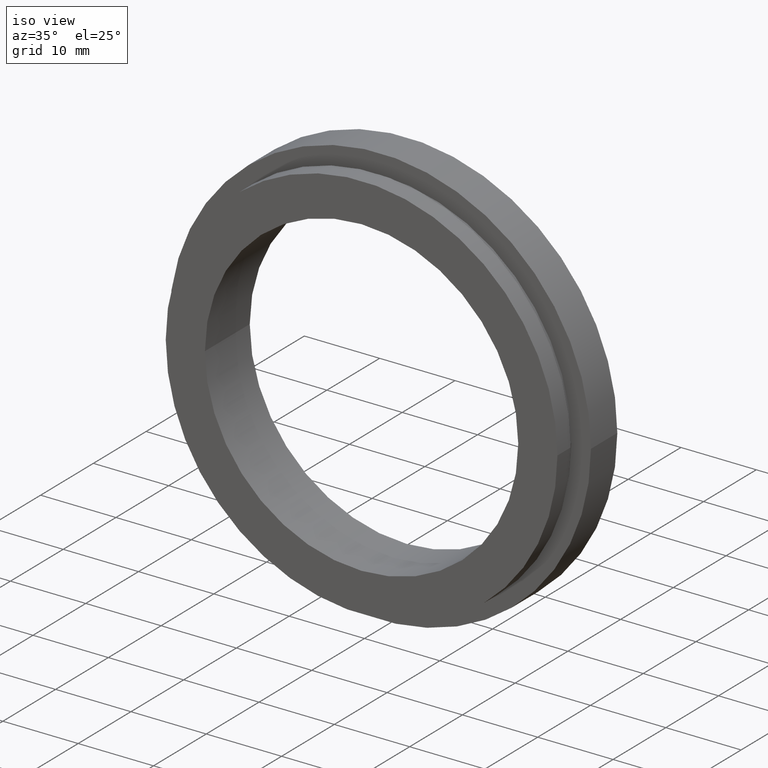
[diagram: clean part render]
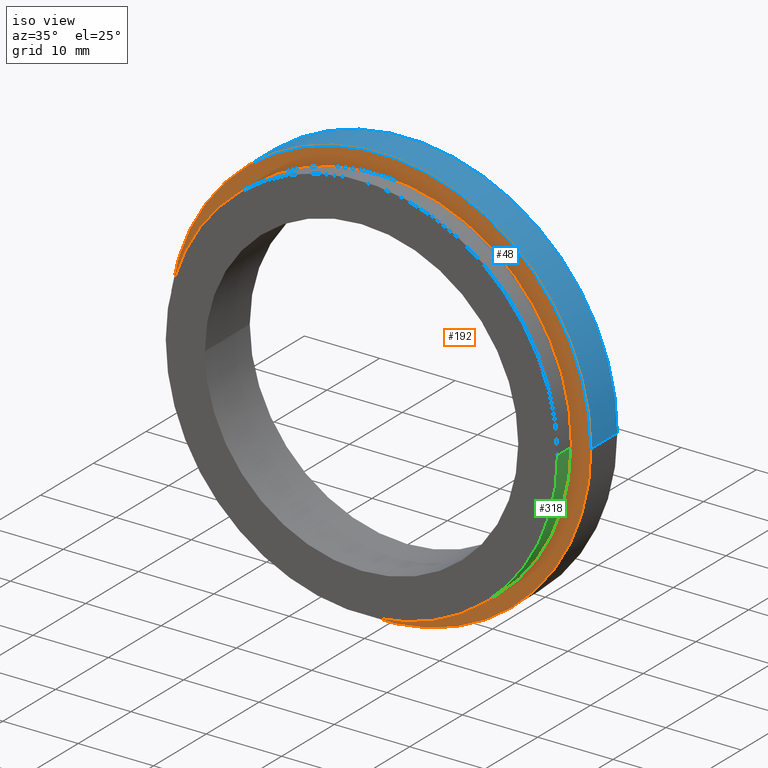
[diagram: same view with three faces highlighted in distinct colors, each labeled with its STEP entity id]
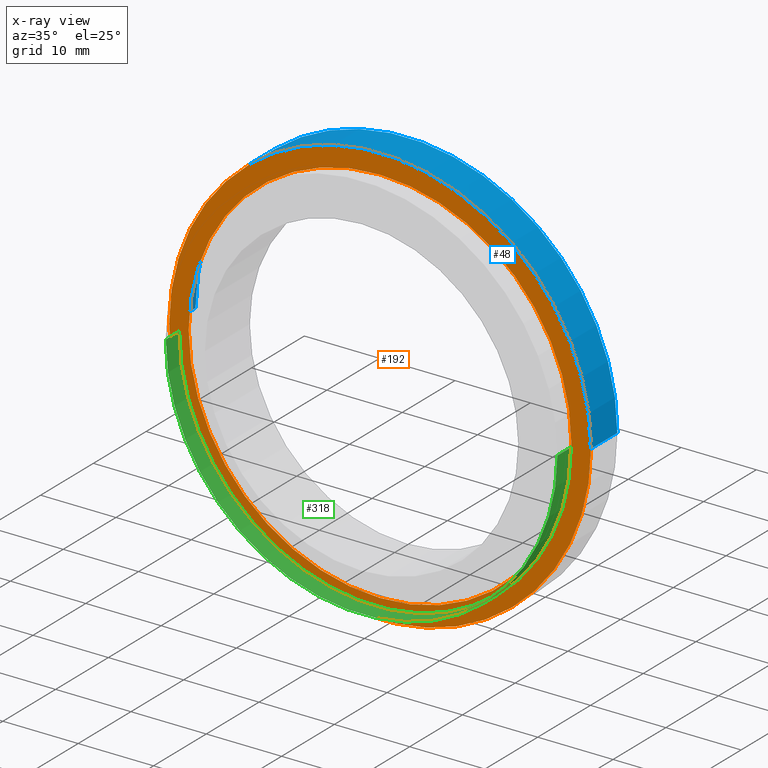
[diagram: x-ray of the same camera — body ghosted, the three highlighted faces saturated]
A machine part, iso view with three faces highlighted in distinct colors.
The next image is the same camera in x-ray (body ghosted, the three faces saturated) — at least one of them is partly hidden behind the body in this view.
Their STEP definitions:

[orange] entity #192 — the highlighted planar face has unit normal (-0, 1, 0).
#1 = DIRECTION ( 'NONE',  ( -1.000000000000000000, -1.224646799147351000E-016, 0.0000000000000000000 ) ) ;
#15 = ORIENTED_EDGE ( 'NONE', *, *, #132, .T. ) ;
#36 = CARTESIAN_POINT ( 'NONE',  ( 1.706114563249712100E-015, 2.954535588880334600, 0.0000000000000000000 ) ) ;
#41 = DIRECTION ( 'NONE',  ( -1.224646799147351000E-016, 1.000000000000000000, -0.0000000000000000000 ) ) ;
#60 = DIRECTION ( 'NONE',  ( -1.000000000000000000, -1.195183497228115300E-016, 0.0000000000000000000 ) ) ;
#62 = PLANE ( 'NONE',  #334 ) ;
#63 = EDGE_LOOP ( 'NONE', ( #267, #15 ) ) ;
#69 = CIRCLE ( 'NONE', #281, 25.39999999999999900 ) ;
#71 = CARTESIAN_POINT ( 'NONE',  ( 25.39999999999999900, 2.954535588880337700, 3.110602869834276900E-015 ) ) ;
#78 = CARTESIAN_POINT ( 'NONE',  ( 1.706114563249712100E-015, 2.954535588880334600, 0.0000000000000000000 ) ) ;
#103 = DIRECTION ( 'NONE',  ( -1.000000000000000000, -1.195183497228115300E-016, 0.0000000000000000000 ) ) ;
#113 = CARTESIAN_POINT ( 'NONE',  ( 28.00000000000001100, 2.954535588880338200, 3.429011037612590100E-015 ) ) ;
#114 = DIRECTION ( 'NONE',  ( -1.224646799147351000E-016, 1.000000000000000000, -0.0000000000000000000 ) ) ;
#131 = CARTESIAN_POINT ( 'NONE',  ( -25.39999999999999900, 2.954535588880331500, 0.0000000000000000000 ) ) ;
#132 = EDGE_CURVE ( 'NONE', #240, #189, #214, .T. ) ;
#136 = FACE_OUTER_BOUND ( 'NONE', #209, .T. ) ;
#161 = CARTESIAN_POINT ( 'NONE',  ( 1.706114563249712100E-015, 2.954535588880334600, 0.0000000000000000000 ) ) ;
#165 = CARTESIAN_POINT ( 'NONE',  ( 1.706114563249712100E-015, 2.954535588880334600, 0.0000000000000000000 ) ) ;
#169 = VERTEX_POINT ( 'NONE', #384 ) ;
#189 = VERTEX_POINT ( 'NONE', #131 ) ;
#192 = ADVANCED_FACE ( 'NONE', ( #136, #394 ), #62, .F. ) ;
#197 = EDGE_CURVE ( 'NONE', #189, #240, #69, .T. ) ;
#203 = ORIENTED_EDGE ( 'NONE', *, *, #387, .F. ) ;
#209 = EDGE_LOOP ( 'NONE', ( #272, #203 ) ) ;
#214 = CIRCLE ( 'NONE', #333, 25.39999999999999900 ) ;
#225 = DIRECTION ( 'NONE',  ( -1.224646799147351000E-016, 1.000000000000000000, -0.0000000000000000000 ) ) ;
#235 = DIRECTION ( 'NONE',  ( -1.224646799147351000E-016, 1.000000000000000000, -0.0000000000000000000 ) ) ;
#240 = VERTEX_POINT ( 'NONE', #71 ) ;
#267 = ORIENTED_EDGE ( 'NONE', *, *, #197, .T. ) ;
#272 = ORIENTED_EDGE ( 'NONE', *, *, #326, .F. ) ;
#273 = DIRECTION ( 'NONE',  ( -1.000000000000000000, -1.239088197126290600E-016, 0.0000000000000000000 ) ) ;
#281 = AXIS2_PLACEMENT_3D ( 'NONE', #165, #235, #103 ) ;
#291 = CIRCLE ( 'NONE', #310, 28.00000000000000700 ) ;
#298 = CIRCLE ( 'NONE', #304, 28.00000000000000700 ) ;
#304 = AXIS2_PLACEMENT_3D ( 'NONE', #78, #114, #403 ) ;
#310 = AXIS2_PLACEMENT_3D ( 'NONE', #36, #41, #273 ) ;
#325 = VERTEX_POINT ( 'NONE', #113 ) ;
#326 = EDGE_CURVE ( 'NONE', #169, #325, #298, .T. ) ;
#333 = AXIS2_PLACEMENT_3D ( 'NONE', #161, #225, #60 ) ;
#334 = AXIS2_PLACEMENT_3D ( 'NONE', #356, #355, #1 ) ;
#355 = DIRECTION ( 'NONE',  ( -1.224646799147351000E-016, 1.000000000000000000, 0.0000000000000000000 ) ) ;
#356 = CARTESIAN_POINT ( 'NONE',  ( 25.39999999999999900, 2.954535588880337300, 0.0000000000000000000 ) ) ;
#384 = CARTESIAN_POINT ( 'NONE',  ( -28.00000000000000700, 2.954535588880331100, 0.0000000000000000000 ) ) ;
#387 = EDGE_CURVE ( 'NONE', #325, #169, #291, .T. ) ;
#394 = FACE_BOUND ( 'NONE', #63, .T. ) ;
#403 = DIRECTION ( 'NONE',  ( -1.000000000000000000, -1.239088197126290600E-016, 0.0000000000000000000 ) ) ;

[blue] entity #48 — the highlighted cylindrical surface (partial cylindrical patch) has radius 28 mm, axis along (-0, 1, -0).
#3 = AXIS2_PLACEMENT_3D ( 'NONE', #124, #378, #228 ) ;
#12 = FACE_OUTER_BOUND ( 'NONE', #257, .T. ) ;
#18 = ORIENTED_EDGE ( 'NONE', *, *, #326, .T. ) ;
#48 = ADVANCED_FACE ( 'NONE', ( #12 ), #271, .T. ) ;
#53 = ORIENTED_EDGE ( 'NONE', *, *, #218, .F. ) ;
#65 = EDGE_CURVE ( 'NONE', #215, #245, #163, .T. ) ;
#78 = CARTESIAN_POINT ( 'NONE',  ( 1.706114563249712100E-015, 2.954535588880334600, 0.0000000000000000000 ) ) ;
#93 = DIRECTION ( 'NONE',  ( -1.000000000000000000, -1.239088197126290600E-016, 0.0000000000000000000 ) ) ;
#97 = CARTESIAN_POINT ( 'NONE',  ( 0.0000000000000000000, 16.88601823708207700, 0.0000000000000000000 ) ) ;
#98 = DIRECTION ( 'NONE',  ( -1.224646799147351000E-016, 1.000000000000000000, -0.0000000000000000000 ) ) ;
#108 = EDGE_CURVE ( 'NONE', #325, #245, #285, .T. ) ;
#113 = CARTESIAN_POINT ( 'NONE',  ( 28.00000000000001100, 2.954535588880338200, 3.429011037612590100E-015 ) ) ;
#114 = DIRECTION ( 'NONE',  ( -1.224646799147351000E-016, 1.000000000000000000, -0.0000000000000000000 ) ) ;
#124 = CARTESIAN_POINT ( 'NONE',  ( 1.093791163676037000E-015, 7.954535588880333700, 0.0000000000000000000 ) ) ;
#126 = VECTOR ( 'NONE', #137, 1000.000000000000000 ) ;
#137 = DIRECTION ( 'NONE',  ( -1.224646799147351000E-016, 1.000000000000000000, -0.0000000000000000000 ) ) ;
#156 = CARTESIAN_POINT ( 'NONE',  ( 28.00000000000000400, 16.88601823708208000, 3.429011037612589700E-015 ) ) ;
#163 = CIRCLE ( 'NONE', #3, 28.00000000000000000 ) ;
#169 = VERTEX_POINT ( 'NONE', #384 ) ;
#201 = ORIENTED_EDGE ( 'NONE', *, *, #108, .T. ) ;
#202 = CARTESIAN_POINT ( 'NONE',  ( 28.00000000000000000, 7.954535588880337300, 3.429011037612589300E-015 ) ) ;
#215 = VERTEX_POINT ( 'NONE', #329 ) ;
#218 = EDGE_CURVE ( 'NONE', #169, #215, #296, .T. ) ;
#228 = DIRECTION ( 'NONE',  ( -1.000000000000000000, -1.239088197126290800E-016, 0.0000000000000000000 ) ) ;
#245 = VERTEX_POINT ( 'NONE', #202 ) ;
#255 = DIRECTION ( 'NONE',  ( -1.224646799147351000E-016, 1.000000000000000000, -0.0000000000000000000 ) ) ;
#257 = EDGE_LOOP ( 'NONE', ( #18, #201, #286, #53 ) ) ;
#271 = CYLINDRICAL_SURFACE ( 'NONE', #295, 28.00000000000000400 ) ;
#285 = LINE ( 'NONE', #156, #331 ) ;
#286 = ORIENTED_EDGE ( 'NONE', *, *, #65, .F. ) ;
#295 = AXIS2_PLACEMENT_3D ( 'NONE', #97, #98, #93 ) ;
#296 = LINE ( 'NONE', #391, #126 ) ;
#298 = CIRCLE ( 'NONE', #304, 28.00000000000000700 ) ;
#304 = AXIS2_PLACEMENT_3D ( 'NONE', #78, #114, #403 ) ;
#325 = VERTEX_POINT ( 'NONE', #113 ) ;
#326 = EDGE_CURVE ( 'NONE', #169, #325, #298, .T. ) ;
#329 = CARTESIAN_POINT ( 'NONE',  ( -28.00000000000000000, 7.954535588880330200, 0.0000000000000000000 ) ) ;
#331 = VECTOR ( 'NONE', #255, 1000.000000000000000 ) ;
#378 = DIRECTION ( 'NONE',  ( -1.224646799147351000E-016, 1.000000000000000000, -0.0000000000000000000 ) ) ;
#384 = CARTESIAN_POINT ( 'NONE',  ( -28.00000000000000700, 2.954535588880331100, 0.0000000000000000000 ) ) ;
#391 = CARTESIAN_POINT ( 'NONE',  ( -28.00000000000000400, 16.88601823708207300, 0.0000000000000000000 ) ) ;
#403 = DIRECTION ( 'NONE',  ( -1.000000000000000000, -1.239088197126290600E-016, 0.0000000000000000000 ) ) ;

[green] entity #318 — the highlighted cylindrical surface (partial cylindrical patch) has radius 26 mm, axis along (-0, 1, -0).
#2 = CARTESIAN_POINT ( 'NONE',  ( 0.0000000000000000000, 16.88601823708207700, 0.0000000000000000000 ) ) ;
#4 = CARTESIAN_POINT ( 'NONE',  ( -25.99999999999999600, 16.88601823708207300, 0.0000000000000000000 ) ) ;
#13 = FACE_OUTER_BOUND ( 'NONE', #94, .T. ) ;
#45 = CIRCLE ( 'NONE', #119, 25.99999999999999600 ) ;
#46 = CARTESIAN_POINT ( 'NONE',  ( -25.99999999999999300, -0.5454644111196717000, 0.0000000000000000000 ) ) ;
#52 = EDGE_CURVE ( 'NONE', #115, #164, #133, .T. ) ;
#55 = AXIS2_PLACEMENT_3D ( 'NONE', #2, #206, #401 ) ;
#67 = VECTOR ( 'NONE', #177, 1000.000000000000000 ) ;
#75 = ORIENTED_EDGE ( 'NONE', *, *, #147, .F. ) ;
#88 = VECTOR ( 'NONE', #380, 1000.000000000000000 ) ;
#92 = CARTESIAN_POINT ( 'NONE',  ( 2.134740942951285500E-015, -0.5454644111196684800, 0.0000000000000000000 ) ) ;
#94 = EDGE_LOOP ( 'NONE', ( #341, #262, #227, #75 ) ) ;
#96 = VERTEX_POINT ( 'NONE', #321 ) ;
#102 = DIRECTION ( 'NONE',  ( -1.000000000000000000, -1.167602339599774200E-016, 0.0000000000000000000 ) ) ;
#115 = VERTEX_POINT ( 'NONE', #418 ) ;
#119 = AXIS2_PLACEMENT_3D ( 'NONE', #337, #232, #102 ) ;
#133 = LINE ( 'NONE', #350, #88 ) ;
#147 = EDGE_CURVE ( 'NONE', #164, #96, #45, .T. ) ;
#157 = CARTESIAN_POINT ( 'NONE',  ( 26.00000000000000000, 1.954535588880336600, 3.184081677783117800E-015 ) ) ;
#164 = VERTEX_POINT ( 'NONE', #157 ) ;
#177 = DIRECTION ( 'NONE',  ( -1.224646799147351000E-016, 1.000000000000000000, -0.0000000000000000000 ) ) ;
#206 = DIRECTION ( 'NONE',  ( -1.224646799147351000E-016, 1.000000000000000000, -0.0000000000000000000 ) ) ;
#224 = CIRCLE ( 'NONE', #330, 25.99999999999999600 ) ;
#227 = ORIENTED_EDGE ( 'NONE', *, *, #300, .T. ) ;
#232 = DIRECTION ( 'NONE',  ( -1.224646799147351000E-016, 1.000000000000000000, -0.0000000000000000000 ) ) ;
#254 = DIRECTION ( 'NONE',  ( -1.000000000000000000, -1.209302423156908900E-016, 0.0000000000000000000 ) ) ;
#262 = ORIENTED_EDGE ( 'NONE', *, *, #429, .T. ) ;
#300 = EDGE_CURVE ( 'NONE', #381, #96, #328, .T. ) ;
#318 = ADVANCED_FACE ( 'NONE', ( #13 ), #385, .T. ) ;
#321 = CARTESIAN_POINT ( 'NONE',  ( -25.99999999999999300, 1.954535588880330600, 0.0000000000000000000 ) ) ;
#328 = LINE ( 'NONE', #4, #67 ) ;
#330 = AXIS2_PLACEMENT_3D ( 'NONE', #92, #415, #254 ) ;
#337 = CARTESIAN_POINT ( 'NONE',  ( 1.828579243164447600E-015, 1.954535588880333700, 0.0000000000000000000 ) ) ;
#341 = ORIENTED_EDGE ( 'NONE', *, *, #52, .F. ) ;
#350 = CARTESIAN_POINT ( 'NONE',  ( 25.99999999999999600, 16.88601823708208000, 3.184081677783117800E-015 ) ) ;
#380 = DIRECTION ( 'NONE',  ( -1.224646799147351000E-016, 1.000000000000000000, -0.0000000000000000000 ) ) ;
#381 = VERTEX_POINT ( 'NONE', #46 ) ;
#385 = CYLINDRICAL_SURFACE ( 'NONE', #55, 25.99999999999999600 ) ;
#401 = DIRECTION ( 'NONE',  ( -1.000000000000000000, -1.334402673828313300E-016, 0.0000000000000000000 ) ) ;
#415 = DIRECTION ( 'NONE',  ( -1.224646799147351000E-016, 1.000000000000000000, -0.0000000000000000000 ) ) ;
#418 = CARTESIAN_POINT ( 'NONE',  ( 26.00000000000000000, -0.5454644111196653700, 3.184081677783117800E-015 ) ) ;
#429 = EDGE_CURVE ( 'NONE', #115, #381, #224, .T. ) ;